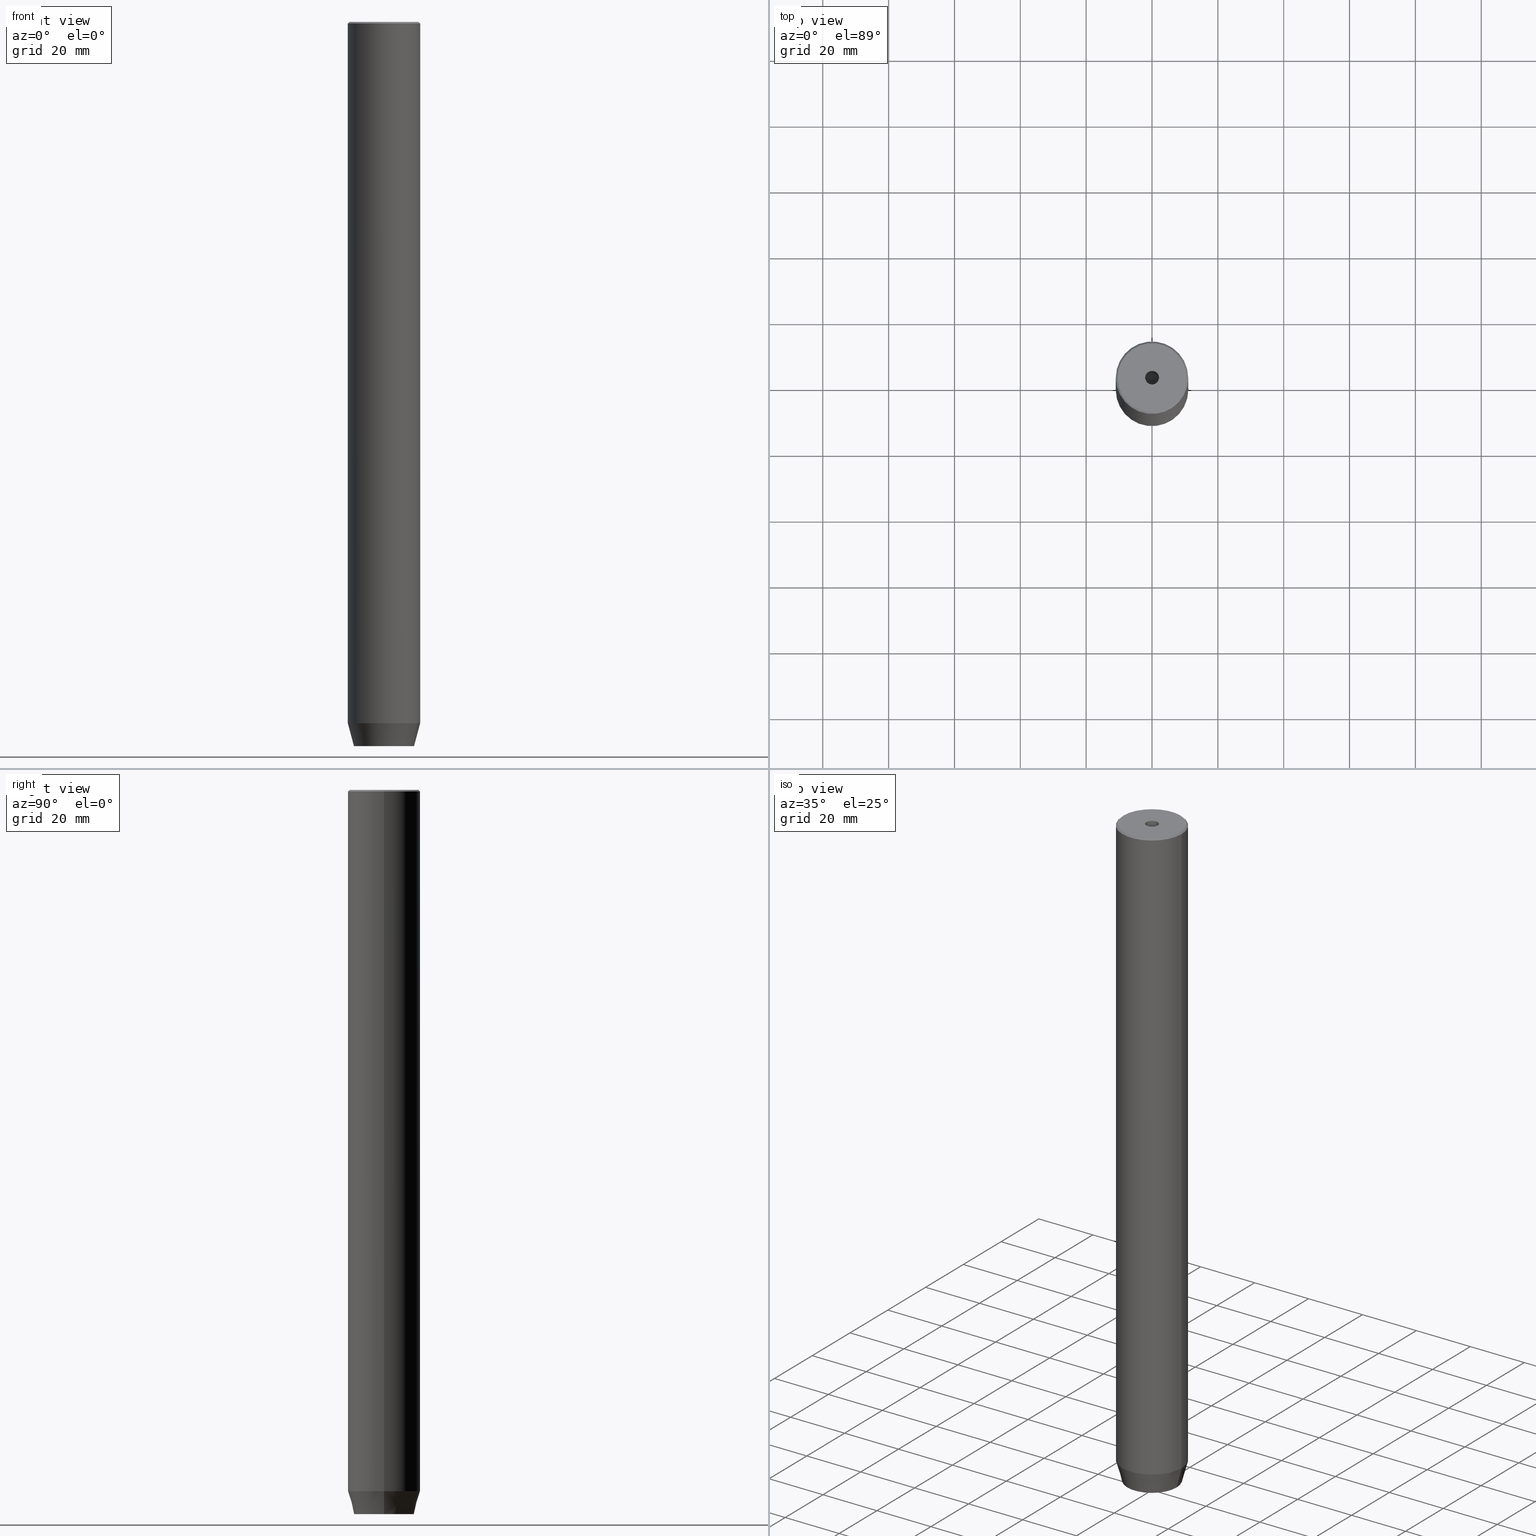
[diagram: canonical four-view strip — front | top / right | iso, engineering-drawing reading convention]
A machine part, canonical four-view strip (front | top / right | iso — engineering-drawing reading convention). The complete STEP part file that produces these views, byte-faithful:
ISO-10303-21;
HEADER;
FILE_DESCRIPTION (( 'STEP AP203' ),
    '1' );
FILE_NAME ('9ceb.STEP',
    '2024-01-02T17:17:46',
    ( '' ),
    ( '' ),
    'SwSTEP 2.0',
    'SolidWorks 2019',
    '' );
FILE_SCHEMA (( 'CONFIG_CONTROL_DESIGN' ));
ENDSEC;

DATA;
#1 = ORIENTED_EDGE ( 'NONE', *, *, #455, .T. ) ;
#2 = VECTOR ( 'NONE', #53, 1000.000000000000000 ) ;
#3 = AXIS2_PLACEMENT_3D ( 'NONE', #462, #364, #315 ) ;
#4 = ADVANCED_FACE ( 'NONE', ( #447 ), #166, .T. ) ;
#5 = CYLINDRICAL_SURFACE ( 'NONE', #268, 11.00000000000000000 ) ;
#6 = CARTESIAN_POINT ( 'NONE',  ( 4.000000000000000000, -2.309401076758502480, -217.2000000000000171 ) ) ;
#7 = CARTESIAN_POINT ( 'NONE',  ( 0.000000000000000000, 0.000000000000000000, -25.00000000000000000 ) ) ;
#8 = LINE ( 'NONE', #153, #2 ) ;
#9 = LINE ( 'NONE', #421, #437 ) ;
#10 = ADVANCED_FACE ( 'NONE', ( #580 ), #410, .F. ) ;
#11 = CARTESIAN_POINT ( 'NONE',  ( -2.099999999999996980, 2.571758278209438013E-16, 0.000000000000000000 ) ) ;
#12 = APPLICATION_PROTOCOL_DEFINITION ( 'international standard', 'config_control_design', 1994, #253 ) ;
#13 = CARTESIAN_POINT ( 'NONE',  ( 0.000000000000000000, 0.000000000000000000, -0.4999999999999726885 ) ) ;
#14 = DIRECTION ( 'NONE',  ( -0.8660254037844384856, 0.5000000000000002220, 0.000000000000000000 ) ) ;
#15 = PLANE ( 'NONE',  #552 ) ;
#16 = CARTESIAN_POINT ( 'NONE',  ( 0.000000000000000000, 0.000000000000000000, 0.000000000000000000 ) ) ;
#17 = VERTEX_POINT ( 'NONE', #465 ) ;
#18 = MECHANICAL_CONTEXT ( 'NONE', #253, 'mechanical' ) ;
#19 = EDGE_CURVE ( 'NONE', #83, #443, #28, .T. ) ;
#20 = CIRCLE ( 'NONE', #149, 11.00000000000000000 ) ;
#21 = CARTESIAN_POINT ( 'NONE',  ( 0.000000000000000000, 0.000000000000000000, 0.000000000000000000 ) ) ;
#22 = EDGE_LOOP ( 'NONE', ( #80, #306, #399, #486 ) ) ;
#23 = ORIENTED_EDGE ( 'NONE', *, *, #183, .F. ) ;
#24 = CALENDAR_DATE ( 2024, 2, 1 ) ;
#25 = EDGE_CURVE ( 'NONE', #473, #343, #232, .T. ) ;
#26 = EDGE_LOOP ( 'NONE', ( #220, #342, #169, #210 ) ) ;
#27 = APPROVAL_STATUS ( 'not_yet_approved' ) ;
#28 = CIRCLE ( 'NONE', #497, 11.00000000000000000 ) ;
#29 = VECTOR ( 'NONE', #37, 999.9999999999998863 ) ;
#30 = EDGE_LOOP ( 'NONE', ( #584, #23, #44, #484 ) ) ;
#31 = APPROVAL_PERSON_ORGANIZATION ( #75, #341, #162 ) ;
#32 = VECTOR ( 'NONE', #279, 1000.000000000000000 ) ;
#33 = PERSON_AND_ORGANIZATION_ROLE ( 'creator' ) ;
#34 = CARTESIAN_POINT ( 'NONE',  ( 0.000000000000000000, 4.618802153517006737, -217.2000000000000171 ) ) ;
#35 = DIRECTION ( 'NONE',  ( 0.000000000000000000, 0.000000000000000000, -1.000000000000000000 ) ) ;
#36 = CALENDAR_DATE ( 2024, 2, 1 ) ;
#37 = DIRECTION ( 'NONE',  ( 0.8660254037844387076, 0.5000000000000001110, 0.000000000000000000 ) ) ;
#38 = ORIENTED_EDGE ( 'NONE', *, *, #25, .F. ) ;
#39 = DIRECTION ( 'NONE',  ( -0.8660254037844385966, 0.5000000000000001110, 0.000000000000000000 ) ) ;
#40 = ORIENTED_EDGE ( 'NONE', *, *, #200, .T. ) ;
#41 = VECTOR ( 'NONE', #330, 1000.000000000000000 ) ;
#42 = CIRCLE ( 'NONE', #344, 2.099999999999995648 ) ;
#43 = DIRECTION ( 'NONE',  ( -0.000000000000000000, -0.000000000000000000, 1.000000000000000000 ) ) ;
#44 = ORIENTED_EDGE ( 'NONE', *, *, #200, .F. ) ;
#45 = CARTESIAN_POINT ( 'NONE',  ( 11.00000000000000000, 0.000000000000000000, -0.4999999999999726885 ) ) ;
#46 = ORIENTED_EDGE ( 'NONE', *, *, #345, .F. ) ;
#47 = EDGE_CURVE ( 'NONE', #352, #177, #512, .T. ) ;
#48 = DIRECTION ( 'NONE',  ( -0.8660254037844384856, -0.5000000000000002220, 0.000000000000000000 ) ) ;
#49 = LINE ( 'NONE', #6, #427 ) ;
#50 = DESIGN_CONTEXT ( 'detailed design', #518, 'design' ) ;
#51 = CARTESIAN_POINT ( 'NONE',  ( -2.000000000000000000, 3.464101615137754830, -220.0000000000000000 ) ) ;
#52 = DIRECTION ( 'NONE',  ( -0.7071067811865401342, 0.000000000000000000, -0.7071067811865549002 ) ) ;
#53 = DIRECTION ( 'NONE',  ( -0.000000000000000000, -0.000000000000000000, -1.000000000000000000 ) ) ;
#54 = DIRECTION ( 'NONE',  ( 1.000000000000000000, 0.000000000000000000, 0.000000000000000000 ) ) ;
#55 = PRODUCT ( '9ceb', '9ceb', '', ( #18 ) ) ;
#56 = LINE ( 'NONE', #239, #398 ) ;
#57 = AXIS2_PLACEMENT_3D ( 'NONE', #565, #400, #160 ) ;
#58 = PLANE ( 'NONE',  #284 ) ;
#59 = CARTESIAN_POINT ( 'NONE',  ( 0.000000000000000000, 0.000000000000000000, -212.9999999999999716 ) ) ;
#60 = CARTESIAN_POINT ( 'NONE',  ( 9.124355652982126585, 0.000000000000000000, -220.0000000000000000 ) ) ;
#61 = ORIENTED_EDGE ( 'NONE', *, *, #90, .F. ) ;
#62 = EDGE_CURVE ( 'NONE', #456, #479, #8, .T. ) ;
#63 = DIRECTION ( 'NONE',  ( -0.5000000000000000000, 0.8660254037844387076, 0.000000000000000000 ) ) ;
#64 = LINE ( 'NONE', #355, #29 ) ;
#65 = ORIENTED_EDGE ( 'NONE', *, *, #126, .F. ) ;
#66 = CIRCLE ( 'NONE', #176, 9.124355652982126585 ) ;
#67 = DIRECTION ( 'NONE',  ( -0.000000000000000000, -0.000000000000000000, 1.000000000000000000 ) ) ;
#68 = EDGE_LOOP ( 'NONE', ( #562, #295, #436, #163 ) ) ;
#69 = DATE_AND_TIME ( #572, #157 ) ;
#70 = EDGE_CURVE ( 'NONE', #230, #343, #382, .T. ) ;
#71 = ORIENTED_EDGE ( 'NONE', *, *, #319, .T. ) ;
#72 = CALENDAR_DATE ( 2024, 2, 1 ) ;
#73 = CC_DESIGN_PERSON_AND_ORGANIZATION_ASSIGNMENT ( #201, #383, ( #55 ) ) ;
#74 = ORIENTED_EDGE ( 'NONE', *, *, #327, .F. ) ;
#75 = PERSON_AND_ORGANIZATION ( #104, #517 ) ;
#76 = AXIS2_PLACEMENT_3D ( 'NONE', #313, #321, #359 ) ;
#77 = ORIENTED_EDGE ( 'NONE', *, *, #404, .F. ) ;
#78 = PERSON_AND_ORGANIZATION ( #104, #517 ) ;
#79 = CARTESIAN_POINT ( 'NONE',  ( -9.124355652982126585, 1.232261386766375113E-15, -220.0000000000000000 ) ) ;
#80 = ORIENTED_EDGE ( 'NONE', *, *, #554, .T. ) ;
#81 = ADVANCED_FACE ( 'NONE', ( #103 ), #556, .F. ) ;
#82 = DIRECTION ( 'NONE',  ( -0.8660254037844384856, 0.5000000000000002220, 0.000000000000000000 ) ) ;
#83 = VERTEX_POINT ( 'NONE', #283 ) ;
#84 = CC_DESIGN_DATE_AND_TIME_ASSIGNMENT ( #69, #530, ( #370 ) ) ;
#85 = DIRECTION ( 'NONE',  ( 1.000000000000000000, 0.000000000000000000, 0.000000000000000000 ) ) ;
#86 = VECTOR ( 'NONE', #194, 1000.000000000000000 ) ;
#87 = ORIENTED_EDGE ( 'NONE', *, *, #281, .T. ) ;
#88 = VECTOR ( 'NONE', #461, 1000.000000000000000 ) ;
#89 = FACE_OUTER_BOUND ( 'NONE', #569, .T. ) ;
#90 = EDGE_CURVE ( 'NONE', #260, #347, #42, .T. ) ;
#91 = ORIENTED_EDGE ( 'NONE', *, *, #281, .F. ) ;
#92 = FACE_OUTER_BOUND ( 'NONE', #26, .T. ) ;
#93 = CARTESIAN_POINT ( 'NONE',  ( 0.000000000000000000, 0.000000000000000000, 0.000000000000000000 ) ) ;
#94 = LINE ( 'NONE', #501, #356 ) ;
#95 = DIRECTION ( 'NONE',  ( -0.000000000000000000, -0.000000000000000000, 1.000000000000000000 ) ) ;
#96 = VECTOR ( 'NONE', #286, 1000.000000000000000 ) ;
#97 = PLANE ( 'NONE',  #489 ) ;
#98 = CARTESIAN_POINT ( 'NONE',  ( -4.000000000000000000, 0.000000000000000000, -217.2000000000000171 ) ) ;
#99 = ADVANCED_FACE ( 'NONE', ( #470 ), #58, .F. ) ;
#100 = CARTESIAN_POINT ( 'NONE',  ( 0.000000000000000000, 0.000000000000000000, 0.000000000000000000 ) ) ;
#101 = CARTESIAN_POINT ( 'NONE',  ( -2.000000000000000888, -3.464101615137754386, -217.2000000000000171 ) ) ;
#102 = PLANE ( 'NONE',  #165 ) ;
#103 = FACE_OUTER_BOUND ( 'NONE', #238, .T. ) ;
#104 = PERSON ( 'NEUR�EN�', 'NEUR�EN�', 'NEUR�EN�', ('NEUR�EN�'), ('NEUR�EN�'), ('NEUR�EN�') ) ;
#105 = VECTOR ( 'NONE', #199, 1000.000000000000000 ) ;
#106 = APPLICATION_PROTOCOL_DEFINITION ( 'international standard', 'config_control_design', 1994, #518 ) ;
#107 = CC_DESIGN_SECURITY_CLASSIFICATION ( #208, ( #140 ) ) ;
#108 = EDGE_CURVE ( 'NONE', #309, #352, #510, .T. ) ;
#109 = CARTESIAN_POINT ( 'NONE',  ( 0.000000000000000000, 9.124355652982126585, -220.0000000000000000 ) ) ;
#110 = ORIENTED_EDGE ( 'NONE', *, *, #302, .T. ) ;
#111 = LINE ( 'NONE', #204, #96 ) ;
#112 = CARTESIAN_POINT ( 'NONE',  ( 4.336808689942017736E-16, -4.618802153517006737, -217.2000000000000171 ) ) ;
#113 = VERTEX_POINT ( 'NONE', #502 ) ;
#114 = DIRECTION ( 'NONE',  ( 1.000000000000000000, 0.000000000000000000, 0.000000000000000000 ) ) ;
#115 = ORIENTED_EDGE ( 'NONE', *, *, #485, .F. ) ;
#116 = EDGE_CURVE ( 'NONE', #496, #388, #454, .T. ) ;
#117 = VECTOR ( 'NONE', #291, 1000.000000000000000 ) ;
#118 = LOCAL_TIME ( 18, 17, 46.00000000000000000, #483 ) ;
#119 = ORIENTED_EDGE ( 'NONE', *, *, #116, .T. ) ;
#120 = PERSON_AND_ORGANIZATION ( #104, #517 ) ;
#121 = ORIENTED_EDGE ( 'NONE', *, *, #191, .T. ) ;
#122 = ORIENTED_EDGE ( 'NONE', *, *, #336, .F. ) ;
#123 = DATE_AND_TIME ( #36, #196 ) ;
#124 = CARTESIAN_POINT ( 'NONE',  ( 2.000000000000000444, 3.464101615137754386, -220.0000000000000000 ) ) ;
#125 = CIRCLE ( 'NONE', #195, 10.50000000000003730 ) ;
#126 = EDGE_CURVE ( 'NONE', #83, #473, #56, .T. ) ;
#127 = EDGE_LOOP ( 'NONE', ( #534, #161, #270 ) ) ;
#128 = DIRECTION ( 'NONE',  ( -1.000000000000000000, 0.000000000000000000, 0.000000000000000000 ) ) ;
#129 = CONICAL_SURFACE ( 'NONE', #269, 2.099999999999995648, 1.029744258676651647 ) ;
#130 = MANIFOLD_SOLID_BREP ( 'Vrt�k z�vitn�ku pro M5 z�vit1', #396 ) ;
#131 = CYLINDRICAL_SURFACE ( 'NONE', #581, 11.00000000000000000 ) ;
#132 = ORIENTED_EDGE ( 'NONE', *, *, #241, .F. ) ;
#133 = CARTESIAN_POINT ( 'NONE',  ( -11.00000000000000000, 1.347111479062088405E-15, -212.9999999999999716 ) ) ;
#134 = ORIENTED_EDGE ( 'NONE', *, *, #70, .T. ) ;
#135 = EDGE_CURVE ( 'NONE', #260, #388, #146, .T. ) ;
#136 = CARTESIAN_POINT ( 'NONE',  ( -4.000000000000000000, -2.309401076758503368, -217.2000000000000171 ) ) ;
#137 = AXIS2_PLACEMENT_3D ( 'NONE', #475, #576, #114 ) ;
#138 = EDGE_LOOP ( 'NONE', ( #521, #500 ) ) ;
#139 = VECTOR ( 'NONE', #155, 1000.000000000000000 ) ;
#140 = PRODUCT_DEFINITION_FORMATION_WITH_SPECIFIED_SOURCE ( 'LIBOVOLN�', '', #55, .NOT_KNOWN. ) ;
#141 = AXIS2_PLACEMENT_3D ( 'NONE', #109, #558, #259 ) ;
#142 = LINE ( 'NONE', #457, #367 ) ;
#143 = CARTESIAN_POINT ( 'NONE',  ( -4.000000000000000000, -2.309401076758503368, -220.0000000000000000 ) ) ;
#144 = UNCERTAINTY_MEASURE_WITH_UNIT (LENGTH_MEASURE( 1.000000000000000082E-05 ), #555, 'distance_accuracy_value', 'NONE');
#145 = FACE_OUTER_BOUND ( 'NONE', #413, .T. ) ;
#146 = LINE ( 'NONE', #11, #570 ) ;
#147 = FACE_OUTER_BOUND ( 'NONE', #127, .T. ) ;
#148 = CARTESIAN_POINT ( 'NONE',  ( 0.000000000000000000, 0.000000000000000000, -25.00000000000000000 ) ) ;
#149 = AXIS2_PLACEMENT_3D ( 'NONE', #294, #490, #262 ) ;
#150 = CARTESIAN_POINT ( 'NONE',  ( 11.00000000000000000, 0.000000000000000000, -212.9999999999999716 ) ) ;
#151 = DIRECTION ( 'NONE',  ( -0.000000000000000000, -0.000000000000000000, 1.000000000000000000 ) ) ;
#152 = DIRECTION ( 'NONE',  ( 0.8571673007021108903, 0.000000000000000000, 0.5150380749100565980 ) ) ;
#153 = CARTESIAN_POINT ( 'NONE',  ( 4.000000000000000000, 2.309401076758503368, -217.2000000000000171 ) ) ;
#154 = EDGE_CURVE ( 'NONE', #493, #260, #419, .T. ) ;
#155 = DIRECTION ( 'NONE',  ( 0.8660254037844385966, -0.5000000000000001110, 0.000000000000000000 ) ) ;
#156 = CARTESIAN_POINT ( 'NONE',  ( -6.432287649943602629E-15, 0.000000000000000000, -26.26180729995787999 ) ) ;
#157 = LOCAL_TIME ( 18, 17, 46.00000000000000000, #353 ) ;
#158 = DIRECTION ( 'NONE',  ( 0.000000000000000000, 0.000000000000000000, 1.000000000000000000 ) ) ;
#159 = ORIENTED_EDGE ( 'NONE', *, *, #379, .F. ) ;
#160 = DIRECTION ( 'NONE',  ( 1.000000000000000000, 0.000000000000000000, 0.000000000000000000 ) ) ;
#161 = ORIENTED_EDGE ( 'NONE', *, *, #505, .T. ) ;
#162 = APPROVAL_ROLE ( '' ) ;
#163 = ORIENTED_EDGE ( 'NONE', *, *, #25, .T. ) ;
#164 = PERSON_AND_ORGANIZATION ( #104, #517 ) ;
#165 = AXIS2_PLACEMENT_3D ( 'NONE', #381, #63, #207 ) ;
#166 = CONICAL_SURFACE ( 'NONE', #307, 10.50000000000003730, 0.7853981633974378429 ) ;
#167 = EDGE_LOOP ( 'NONE', ( #292, #311, #441 ) ) ;
#168 = PERSON_AND_ORGANIZATION_ROLE ( 'design_supplier' ) ;
#169 = ORIENTED_EDGE ( 'NONE', *, *, #494, .F. ) ;
#170 = LINE ( 'NONE', #340, #376 ) ;
#171 = EDGE_CURVE ( 'NONE', #254, #473, #373, .T. ) ;
#172 = EDGE_LOOP ( 'NONE', ( #256, #211, #71, #65 ) ) ;
#173 = PERSON_AND_ORGANIZATION_ROLE ( 'creator' ) ;
#174 = PLANE ( 'NONE',  #141 ) ;
#175 = VECTOR ( 'NONE', #323, 1000.000000000000000 ) ;
#176 = AXIS2_PLACEMENT_3D ( 'NONE', #197, #563, #471 ) ;
#177 = VERTEX_POINT ( 'NONE', #143 ) ;
#178 = DIRECTION ( 'NONE',  ( -0.000000000000000000, -0.000000000000000000, 1.000000000000000000 ) ) ;
#179 = ORIENTED_EDGE ( 'NONE', *, *, #554, .F. ) ;
#180 = EDGE_CURVE ( 'NONE', #352, #17, #320, .T. ) ;
#181 = CARTESIAN_POINT ( 'NONE',  ( 2.000000000000000444, 3.464101615137754386, -217.2000000000000171 ) ) ;
#182 = ORIENTED_EDGE ( 'NONE', *, *, #108, .F. ) ;
#183 = EDGE_CURVE ( 'NONE', #537, #476, #49, .T. ) ;
#184 = DIRECTION ( 'NONE',  ( 0.8660254037844387076, 0.5000000000000001110, 0.000000000000000000 ) ) ;
#185 = ORIENTED_EDGE ( 'NONE', *, *, #379, .T. ) ;
#186 = CIRCLE ( 'NONE', #57, 11.00000000000000000 ) ;
#187 = VECTOR ( 'NONE', #551, 1000.000000000000114 ) ;
#188 = CARTESIAN_POINT ( 'NONE',  ( -2.099999999999998757, 2.571758278209440478E-16, -1.990051048614449116E-16 ) ) ;
#189 = DIRECTION ( 'NONE',  ( 1.000000000000000000, 0.000000000000000000, 0.000000000000000000 ) ) ;
#190 = DIRECTION ( 'NONE',  ( -0.000000000000000000, -0.000000000000000000, 1.000000000000000000 ) ) ;
#191 = EDGE_CURVE ( 'NONE', #309, #113, #550, .T. ) ;
#192 = CARTESIAN_POINT ( 'NONE',  ( -2.099999999999995648, 2.571758278209436040E-16, -25.00000000000000000 ) ) ;
#193 = CARTESIAN_POINT ( 'NONE',  ( 2.099999999999995648, 0.000000000000000000, -25.00000000000000000 ) ) ;
#194 = DIRECTION ( 'NONE',  ( 0.000000000000000000, -1.000000000000000000, 0.000000000000000000 ) ) ;
#195 = AXIS2_PLACEMENT_3D ( 'NONE', #16, #432, #446 ) ;
#196 = LOCAL_TIME ( 18, 17, 46.00000000000000000, #213 ) ;
#197 = CARTESIAN_POINT ( 'NONE',  ( 0.000000000000000000, 0.000000000000000000, -220.0000000000000000 ) ) ;
#198 = AXIS2_PLACEMENT_3D ( 'NONE', #368, #95, #548 ) ;
#199 = DIRECTION ( 'NONE',  ( -0.000000000000000000, -0.000000000000000000, -1.000000000000000000 ) ) ;
#200 = EDGE_CURVE ( 'NONE', #456, #537, #467, .T. ) ;
#201 = PERSON_AND_ORGANIZATION ( #104, #517 ) ;
#202 = DIRECTION ( 'NONE',  ( -0.000000000000000000, -0.000000000000000000, 1.000000000000000000 ) ) ;
#203 = CC_DESIGN_PERSON_AND_ORGANIZATION_ASSIGNMENT ( #444, #33, ( #370 ) ) ;
#204 = CARTESIAN_POINT ( 'NONE',  ( 2.000000000000000444, 3.464101615137754386, -217.2000000000000171 ) ) ;
#205 = PLANE ( 'NONE',  #354 ) ;
#206 = ORIENTED_EDGE ( 'NONE', *, *, #485, .T. ) ;
#207 = DIRECTION ( 'NONE',  ( -0.8660254037844385966, -0.4999999999999999445, 0.000000000000000000 ) ) ;
#208 = SECURITY_CLASSIFICATION ( '', '', #532 ) ;
#209 = CARTESIAN_POINT ( 'NONE',  ( 2.168404344971008868E-16, 4.618802153517006737, -220.0000000000000000 ) ) ;
#210 = ORIENTED_EDGE ( 'NONE', *, *, #217, .T. ) ;
#211 = ORIENTED_EDGE ( 'NONE', *, *, #547, .T. ) ;
#212 = ORIENTED_EDGE ( 'NONE', *, *, #224, .F. ) ;
#213 = COORDINATED_UNIVERSAL_TIME_OFFSET ( 1, 0, .AHEAD. ) ;
#214 = CONICAL_SURFACE ( 'NONE', #365, 11.00000000000000000, 0.2617993877991499629 ) ;
#215 = AXIS2_PLACEMENT_3D ( 'NONE', #100, #280, #54 ) ;
#216 = ORIENTED_EDGE ( 'NONE', *, *, #224, .T. ) ;
#217 = EDGE_CURVE ( 'NONE', #358, #316, #310, .T. ) ;
#218 = APPROVAL_DATE_TIME ( #261, #296 ) ;
#219 = DIRECTION ( 'NONE',  ( -1.000000000000000000, 0.000000000000000000, 0.000000000000000000 ) ) ;
#220 = ORIENTED_EDGE ( 'NONE', *, *, #345, .T. ) ;
#221 = CARTESIAN_POINT ( 'NONE',  ( -10.50000000000003730, 0.000000000000000000, 0.000000000000000000 ) ) ;
#222 = EDGE_LOOP ( 'NONE', ( #303, #420, #573, #531 ) ) ;
#223 = CARTESIAN_POINT ( 'NONE',  ( 0.000000000000000000, 0.000000000000000000, -220.0000000000000000 ) ) ;
#224 = EDGE_CURVE ( 'NONE', #230, #254, #425, .T. ) ;
#225 = CC_DESIGN_APPROVAL ( #341, ( #370 ) ) ;
#226 = VERTEX_POINT ( 'NONE', #79 ) ;
#227 = LINE ( 'NONE', #498, #175 ) ;
#228 = CARTESIAN_POINT ( 'NONE',  ( 0.000000000000000000, 0.000000000000000000, 0.000000000000000000 ) ) ;
#229 = CARTESIAN_POINT ( 'NONE',  ( 0.000000000000000000, 0.000000000000000000, 0.000000000000000000 ) ) ;
#230 = VERTEX_POINT ( 'NONE', #221 ) ;
#231 = FACE_OUTER_BOUND ( 'NONE', #68, .T. ) ;
#232 = CIRCLE ( 'NONE', #299, 11.00000000000000000 ) ;
#233 = DIRECTION ( 'NONE',  ( 1.000000000000000000, 0.000000000000000000, 0.000000000000000000 ) ) ;
#234 = ADVANCED_FACE ( 'NONE', ( #351 ), #214, .T. ) ;
#235 = CARTESIAN_POINT ( 'NONE',  ( 4.000000000000000000, 0.000000000000000000, -220.0000000000000000 ) ) ;
#236 = DIRECTION ( 'NONE',  ( -0.000000000000000000, -0.000000000000000000, 1.000000000000000000 ) ) ;
#237 = LINE ( 'NONE', #193, #285 ) ;
#238 = EDGE_LOOP ( 'NONE', ( #349, #132, #247, #119 ) ) ;
#239 = CARTESIAN_POINT ( 'NONE',  ( 11.00000000000000000, 0.000000000000000000, 0.000000000000000000 ) ) ;
#240 = FACE_OUTER_BOUND ( 'NONE', #265, .T. ) ;
#241 = EDGE_CURVE ( 'NONE', #347, #260, #258, .T. ) ;
#242 = DIRECTION ( 'NONE',  ( -0.8571673007021108903, 1.049727191138616847E-16, 0.5150380749100565980 ) ) ;
#243 = DIRECTION ( 'NONE',  ( 1.000000000000000000, 0.000000000000000000, 0.000000000000000000 ) ) ;
#244 = CARTESIAN_POINT ( 'NONE',  ( -10.50000000000003730, 0.000000000000000000, 0.000000000000000000 ) ) ;
#245 = LINE ( 'NONE', #150, #187 ) ;
#246 = FACE_OUTER_BOUND ( 'NONE', #451, .T. ) ;
#247 = ORIENTED_EDGE ( 'NONE', *, *, #336, .T. ) ;
#248 = PRODUCT_DEFINITION_SHAPE ( 'NONE', 'NONE',  #370 ) ;
#249 = PLANE ( 'NONE',  #478 ) ;
#250 = ORIENTED_EDGE ( 'NONE', *, *, #319, .F. ) ;
#251 = ORIENTED_EDGE ( 'NONE', *, *, #511, .F. ) ;
#252 = DATE_AND_TIME ( #438, #378 ) ;
#253 = APPLICATION_CONTEXT ( 'configuration controlled 3d designs of mechanical parts and assemblies' ) ;
#254 = VERTEX_POINT ( 'NONE', #579 ) ;
#255 = ADVANCED_FACE ( 'NONE', ( #520, #560 ), #174, .T. ) ;
#256 = ORIENTED_EDGE ( 'NONE', *, *, #19, .T. ) ;
#257 = PERSON_AND_ORGANIZATION ( #104, #517 ) ;
#258 = CIRCLE ( 'NONE', #317, 2.099999999999995648 ) ;
#259 = DIRECTION ( 'NONE',  ( -1.000000000000000000, 0.000000000000000000, -0.000000000000000000 ) ) ;
#260 = VERTEX_POINT ( 'NONE', #387 ) ;
#261 = DATE_AND_TIME ( #72, #118 ) ;
#262 = DIRECTION ( 'NONE',  ( 1.000000000000000000, 0.000000000000000000, 0.000000000000000000 ) ) ;
#263 = ORIENTED_EDGE ( 'NONE', *, *, #108, .T. ) ;
#264 = DIRECTION ( 'NONE',  ( 1.000000000000000000, 0.000000000000000000, -0.000000000000000000 ) ) ;
#265 = EDGE_LOOP ( 'NONE', ( #251, #206, #491, #540 ) ) ;
#266 = CARTESIAN_POINT ( 'NONE',  ( 2.000000000000000888, -3.464101615137754386, -220.0000000000000000 ) ) ;
#267 = EDGE_CURVE ( 'NONE', #443, #83, #20, .T. ) ;
#268 = AXIS2_PLACEMENT_3D ( 'NONE', #587, #415, #369 ) ;
#269 = AXIS2_PLACEMENT_3D ( 'NONE', #452, #43, #318 ) ;
#270 = ORIENTED_EDGE ( 'NONE', *, *, #241, .T. ) ;
#271 = CARTESIAN_POINT ( 'NONE',  ( 2.099999999999995648, 0.000000000000000000, -25.00000000000000000 ) ) ;
#272 = VERTEX_POINT ( 'NONE', #60 ) ;
#273 = LINE ( 'NONE', #51, #525 ) ;
#274 = CARTESIAN_POINT ( 'NONE',  ( 10.50000000000003730, 1.285879139104725367E-15, 0.000000000000000000 ) ) ;
#275 = ADVANCED_FACE ( 'NONE', ( #389 ), #249, .F. ) ;
#276 = DIRECTION ( 'NONE',  ( -0.8660254037844384856, -0.5000000000000002220, 0.000000000000000000 ) ) ;
#277 = DIRECTION ( 'NONE',  ( -0.000000000000000000, -0.000000000000000000, -1.000000000000000000 ) ) ;
#278 = DIRECTION ( 'NONE',  ( 0.5000000000000001110, 0.8660254037844385966, -0.000000000000000000 ) ) ;
#279 = DIRECTION ( 'NONE',  ( -0.000000000000000000, -0.000000000000000000, -1.000000000000000000 ) ) ;
#280 = DIRECTION ( 'NONE',  ( 0.000000000000000000, 0.000000000000000000, 1.000000000000000000 ) ) ;
#281 = EDGE_CURVE ( 'NONE', #254, #230, #125, .T. ) ;
#282 = DIRECTION ( 'NONE',  ( 0.8660254037844384856, 0.5000000000000002220, 0.000000000000000000 ) ) ;
#283 = CARTESIAN_POINT ( 'NONE',  ( 11.00000000000000000, 0.000000000000000000, -212.9999999999999716 ) ) ;
#284 = AXIS2_PLACEMENT_3D ( 'NONE', #377, #417, #329 ) ;
#285 = VECTOR ( 'NONE', #152, 1000.000000000000114 ) ;
#286 = DIRECTION ( 'NONE',  ( 0.8660254037844385966, -0.5000000000000001110, 0.000000000000000000 ) ) ;
#287 = VECTOR ( 'NONE', #242, 1000.000000000000114 ) ;
#288 = CARTESIAN_POINT ( 'NONE',  ( 0.000000000000000000, 0.000000000000000000, -212.9999999999999716 ) ) ;
#289 = VERTEX_POINT ( 'NONE', #448 ) ;
#290 = DIRECTION ( 'NONE',  ( 0.000000000000000000, -0.000000000000000000, 1.000000000000000000 ) ) ;
#291 = DIRECTION ( 'NONE',  ( -0.000000000000000000, -0.000000000000000000, -1.000000000000000000 ) ) ;
#292 = ORIENTED_EDGE ( 'NONE', *, *, #505, .F. ) ;
#293 = ADVANCED_FACE ( 'NONE', ( #246 ), #205, .F. ) ;
#294 = CARTESIAN_POINT ( 'NONE',  ( 0.000000000000000000, 0.000000000000000000, -212.9999999999999716 ) ) ;
#295 = ORIENTED_EDGE ( 'NONE', *, *, #267, .T. ) ;
#296 = APPROVAL ( #574, 'NEUR�EN�' ) ;
#297 = COORDINATED_UNIVERSAL_TIME_OFFSET ( 1, 0, .AHEAD. ) ;
#298 = CONICAL_SURFACE ( 'NONE', #535, 11.00000000000000000, 0.2617993877991499629 ) ;
#299 = AXIS2_PLACEMENT_3D ( 'NONE', #13, #322, #189 ) ;
#300 = ORIENTED_EDGE ( 'NONE', *, *, #494, .T. ) ;
#301 = PERSON_AND_ORGANIZATION_ROLE ( 'classification_officer' ) ;
#302 = EDGE_CURVE ( 'NONE', #17, #358, #64, .T. ) ;
#303 = ORIENTED_EDGE ( 'NONE', *, *, #430, .T. ) ;
#304 = ORIENTED_EDGE ( 'NONE', *, *, #180, .T. ) ;
#305 = APPROVAL_ROLE ( '' ) ;
#306 = ORIENTED_EDGE ( 'NONE', *, *, #511, .T. ) ;
#307 = AXIS2_PLACEMENT_3D ( 'NONE', #228, #35, #128 ) ;
#308 = DIRECTION ( 'NONE',  ( 1.000000000000000000, 0.000000000000000000, 0.000000000000000000 ) ) ;
#309 = VERTEX_POINT ( 'NONE', #112 ) ;
#310 = LINE ( 'NONE', #34, #117 ) ;
#311 = ORIENTED_EDGE ( 'NONE', *, *, #154, .T. ) ;
#312 = ADVANCED_FACE ( 'NONE', ( #333 ), #131, .T. ) ;
#313 = CARTESIAN_POINT ( 'NONE',  ( 0.000000000000000000, 0.000000000000000000, -217.2000000000000171 ) ) ;
#314 = ORIENTED_EDGE ( 'NONE', *, *, #70, .F. ) ;
#315 = DIRECTION ( 'NONE',  ( -1.000000000000000000, 0.000000000000000000, 0.000000000000000000 ) ) ;
#316 = VERTEX_POINT ( 'NONE', #209 ) ;
#317 = AXIS2_PLACEMENT_3D ( 'NONE', #403, #472, #308 ) ;
#318 = DIRECTION ( 'NONE',  ( 1.000000000000000000, 0.000000000000000000, 0.000000000000000000 ) ) ;
#319 = EDGE_CURVE ( 'NONE', #343, #473, #186, .T. ) ;
#320 = LINE ( 'NONE', #98, #88 ) ;
#321 = DIRECTION ( 'NONE',  ( 0.000000000000000000, 0.000000000000000000, -1.000000000000000000 ) ) ;
#322 = DIRECTION ( 'NONE',  ( 0.000000000000000000, 0.000000000000000000, -1.000000000000000000 ) ) ;
#323 = DIRECTION ( 'NONE',  ( 0.000000000000000000, 1.000000000000000000, 0.000000000000000000 ) ) ;
#324 = VECTOR ( 'NONE', #202, 1000.000000000000000 ) ;
#325 = CARTESIAN_POINT ( 'NONE',  ( 4.336808689942017736E-16, -4.618802153517006737, -217.2000000000000171 ) ) ;
#326 = CC_DESIGN_APPROVAL ( #514, ( #140 ) ) ;
#327 = EDGE_CURVE ( 'NONE', #113, #177, #170, .T. ) ;
#328 = CARTESIAN_POINT ( 'NONE',  ( -11.00000000000000000, 1.347111479062088405E-15, 0.000000000000000000 ) ) ;
#329 = DIRECTION ( 'NONE',  ( 0.8660254037844384856, -0.5000000000000002220, 0.000000000000000000 ) ) ;
#330 = DIRECTION ( 'NONE',  ( -0.000000000000000000, -0.000000000000000000, 1.000000000000000000 ) ) ;
#331 = CARTESIAN_POINT ( 'NONE',  ( 0.000000000000000000, 0.000000000000000000, -212.9999999999999716 ) ) ;
#332 = DIRECTION ( 'NONE',  ( 1.000000000000000000, 0.000000000000000000, 0.000000000000000000 ) ) ;
#333 = FACE_OUTER_BOUND ( 'NONE', #172, .T. ) ;
#334 = VECTOR ( 'NONE', #582, 1000.000000000000000 ) ;
#335 = CARTESIAN_POINT ( 'NONE',  ( 2.099999999999998757, 0.000000000000000000, -1.990051048614449116E-16 ) ) ;
#336 = EDGE_CURVE ( 'NONE', #347, #496, #450, .T. ) ;
#337 = CARTESIAN_POINT ( 'NONE',  ( 2.099999999999996980, 0.000000000000000000, 0.000000000000000000 ) ) ;
#338 = ORIENTED_EDGE ( 'NONE', *, *, #217, .F. ) ;
#339 = FACE_OUTER_BOUND ( 'NONE', #566, .T. ) ;
#340 = CARTESIAN_POINT ( 'NONE',  ( -2.000000000000000888, -3.464101615137754386, -220.0000000000000000 ) ) ;
#341 = APPROVAL ( #27, 'NEUR�EN�' ) ;
#342 = ORIENTED_EDGE ( 'NONE', *, *, #62, .F. ) ;
#343 = VERTEX_POINT ( 'NONE', #533 ) ;
#344 = AXIS2_PLACEMENT_3D ( 'NONE', #148, #151, #429 ) ;
#345 = EDGE_CURVE ( 'NONE', #316, #479, #523, .T. ) ;
#346 = VECTOR ( 'NONE', #545, 1000.000000000000000 ) ;
#347 = VERTEX_POINT ( 'NONE', #271 ) ;
#348 = PERSON_AND_ORGANIZATION ( #104, #517 ) ;
#349 = ORIENTED_EDGE ( 'NONE', *, *, #135, .F. ) ;
#350 = DATE_TIME_ROLE ( 'classification_date' ) ;
#351 = FACE_OUTER_BOUND ( 'NONE', #22, .T. ) ;
#352 = VERTEX_POINT ( 'NONE', #136 ) ;
#353 = COORDINATED_UNIVERSAL_TIME_OFFSET ( 1, 0, .AHEAD. ) ;
#354 = AXIS2_PLACEMENT_3D ( 'NONE', #536, #219, #158 ) ;
#355 = CARTESIAN_POINT ( 'NONE',  ( -2.000000000000000000, 3.464101615137754830, -217.2000000000000171 ) ) ;
#356 = VECTOR ( 'NONE', #276, 1000.000000000000114 ) ;
#357 = ADVANCED_FACE ( 'NONE', ( #89 ), #515, .T. ) ;
#358 = VERTEX_POINT ( 'NONE', #541 ) ;
#359 = DIRECTION ( 'NONE',  ( -1.000000000000000000, 0.000000000000000000, -0.000000000000000000 ) ) ;
#360 = ORIENTED_EDGE ( 'NONE', *, *, #391, .F. ) ;
#361 = DIRECTION ( 'NONE',  ( -0.000000000000000000, -0.000000000000000000, 1.000000000000000000 ) ) ;
#362 = CARTESIAN_POINT ( 'NONE',  ( 2.000000000000000888, -3.464101615137754386, -217.2000000000000171 ) ) ;
#363 = ADVANCED_FACE ( 'NONE', ( #231 ), #5, .T. ) ;
#364 = DIRECTION ( 'NONE',  ( 0.000000000000000000, 0.000000000000000000, -1.000000000000000000 ) ) ;
#365 = AXIS2_PLACEMENT_3D ( 'NONE', #288, #67, #516 ) ;
#366 = CIRCLE ( 'NONE', #416, 2.099999999999998757 ) ;
#367 = VECTOR ( 'NONE', #503, 1000.000000000000000 ) ;
#368 = CARTESIAN_POINT ( 'NONE',  ( 0.000000000000000000, 0.000000000000000000, -1.990051048614449116E-16 ) ) ;
#369 = DIRECTION ( 'NONE',  ( 1.000000000000000000, 0.000000000000000000, 0.000000000000000000 ) ) ;
#370 = PRODUCT_DEFINITION ( 'NEZN�M�', '', #140, #50 ) ;
#371 = DIRECTION ( 'NONE',  ( 0.5000000000000003331, -0.8660254037844385966, 0.000000000000000000 ) ) ;
#372 = LINE ( 'NONE', #235, #334 ) ;
#373 = LINE ( 'NONE', #274, #346 ) ;
#374 = DIRECTION ( 'NONE',  ( -0.2588190451025212391, 3.169619151431771721E-17, 0.9659258262890680902 ) ) ;
#375 = VECTOR ( 'NONE', #52, 1000.000000000000000 ) ;
#376 = VECTOR ( 'NONE', #82, 1000.000000000000114 ) ;
#377 = CARTESIAN_POINT ( 'NONE',  ( -2.000000000000000888, -3.464101615137754386, -217.2000000000000171 ) ) ;
#378 = LOCAL_TIME ( 18, 17, 46.00000000000000000, #393 ) ;
#379 = EDGE_CURVE ( 'NONE', #289, #316, #273, .T. ) ;
#380 = VECTOR ( 'NONE', #14, 1000.000000000000114 ) ;
#381 = CARTESIAN_POINT ( 'NONE',  ( -2.000000000000000000, 3.464101615137754830, -217.2000000000000171 ) ) ;
#382 = LINE ( 'NONE', #244, #375 ) ;
#383 = PERSON_AND_ORGANIZATION_ROLE ( 'design_owner' ) ;
#384 = DIRECTION ( 'NONE',  ( -0.000000000000000000, -0.000000000000000000, 1.000000000000000000 ) ) ;
#385 = CARTESIAN_POINT ( 'NONE',  ( 4.000000000000000000, -2.309401076758502480, -217.2000000000000171 ) ) ;
#386 = ADVANCED_FACE ( 'NONE', ( #539 ), #495, .F. ) ;
#387 = CARTESIAN_POINT ( 'NONE',  ( -2.099999999999995648, 2.571758278209436040E-16, -25.00000000000000000 ) ) ;
#388 = VERTEX_POINT ( 'NONE', #188 ) ;
#389 = FACE_OUTER_BOUND ( 'NONE', #30, .T. ) ;
#390 = EDGE_LOOP ( 'NONE', ( #216, #87 ) ) ;
#391 = EDGE_CURVE ( 'NONE', #177, #289, #227, .T. ) ;
#392 = ORIENTED_EDGE ( 'NONE', *, *, #180, .F. ) ;
#393 = COORDINATED_UNIVERSAL_TIME_OFFSET ( 1, 0, .AHEAD. ) ;
#394 = EDGE_LOOP ( 'NONE', ( #586, #212, #134, #38 ) ) ;
#395 = ORIENTED_EDGE ( 'NONE', *, *, #47, .F. ) ;
#396 = CLOSED_SHELL ( 'NONE', ( #386, #439, #357, #234, #312, #255, #583, #363, #538, #4, #571, #293, #99, #10, #275, #481, #422, #469, #81 ) ) ;
#397 = APPROVAL_DATE_TIME ( #252, #341 ) ;
#398 = VECTOR ( 'NONE', #468, 1000.000000000000000 ) ;
#399 = ORIENTED_EDGE ( 'NONE', *, *, #19, .F. ) ;
#400 = DIRECTION ( 'NONE',  ( 0.000000000000000000, 0.000000000000000000, -1.000000000000000000 ) ) ;
#401 = ORIENTED_EDGE ( 'NONE', *, *, #327, .T. ) ;
#402 = DATE_AND_TIME ( #24, #507 ) ;
#403 = CARTESIAN_POINT ( 'NONE',  ( 0.000000000000000000, 0.000000000000000000, -25.00000000000000000 ) ) ;
#404 = EDGE_CURVE ( 'NONE', #479, #476, #372, .T. ) ;
#405 = ORIENTED_EDGE ( 'NONE', *, *, #302, .F. ) ;
#406 = DIRECTION ( 'NONE',  ( -0.000000000000000000, -0.000000000000000000, 1.000000000000000000 ) ) ;
#407 = PRODUCT_RELATED_PRODUCT_CATEGORY ( 'detail', '', ( #55 ) ) ;
#408 = EDGE_LOOP ( 'NONE', ( #61, #440, #433, #122 ) ) ;
#409 = CARTESIAN_POINT ( 'NONE',  ( 4.000000000000000000, 2.309401076758503368, -217.2000000000000171 ) ) ;
#410 = PLANE ( 'NONE',  #513 ) ;
#411 = EDGE_CURVE ( 'NONE', #388, #496, #366, .T. ) ;
#412 = DIRECTION ( 'NONE',  ( 1.000000000000000000, 0.000000000000000000, 0.000000000000000000 ) ) ;
#413 = EDGE_LOOP ( 'NONE', ( #110, #300, #40, #568, #263, #304 ) ) ;
#414 = CC_DESIGN_PERSON_AND_ORGANIZATION_ASSIGNMENT ( #164, #301, ( #208 ) ) ;
#415 = DIRECTION ( 'NONE',  ( -0.000000000000000000, -0.000000000000000000, 1.000000000000000000 ) ) ;
#416 = AXIS2_PLACEMENT_3D ( 'NONE', #546, #178, #85 ) ;
#417 = DIRECTION ( 'NONE',  ( -0.5000000000000003331, -0.8660254037844385966, 0.000000000000000000 ) ) ;
#418 = PLANE ( 'NONE',  #76 ) ;
#419 = LINE ( 'NONE', #192, #287 ) ;
#420 = ORIENTED_EDGE ( 'NONE', *, *, #191, .F. ) ;
#421 = CARTESIAN_POINT ( 'NONE',  ( -11.00000000000000000, 1.347111479062088405E-15, -212.9999999999999716 ) ) ;
#422 = ADVANCED_FACE ( 'NONE', ( #145 ), #418, .T. ) ;
#423 = CARTESIAN_POINT ( 'NONE',  ( 4.000000000000000000, 0.000000000000000000, -217.2000000000000171 ) ) ;
#424 =( NAMED_UNIT ( * ) SI_UNIT ( $, .STERADIAN. ) SOLID_ANGLE_UNIT ( ) );
#425 = CIRCLE ( 'NONE', #137, 10.50000000000003730 ) ;
#426 = DIRECTION ( 'NONE',  ( 1.000000000000000000, 0.000000000000000000, 0.000000000000000000 ) ) ;
#427 = VECTOR ( 'NONE', #277, 1000.000000000000000 ) ;
#428 = CARTESIAN_POINT ( 'NONE',  ( 0.000000000000000000, 0.000000000000000000, 0.000000000000000000 ) ) ;
#429 = DIRECTION ( 'NONE',  ( 1.000000000000000000, 0.000000000000000000, 0.000000000000000000 ) ) ;
#430 = EDGE_CURVE ( 'NONE', #476, #113, #585, .T. ) ;
#431 = FACE_BOUND ( 'NONE', #138, .T. ) ;
#432 = DIRECTION ( 'NONE',  ( -0.000000000000000000, -0.000000000000000000, 1.000000000000000000 ) ) ;
#433 = ORIENTED_EDGE ( 'NONE', *, *, #411, .T. ) ;
#434 = CARTESIAN_POINT ( 'NONE',  ( 4.000000000000000000, 0.000000000000000000, -217.2000000000000171 ) ) ;
#435 = AXIS2_PLACEMENT_3D ( 'NONE', #229, #361, #412 ) ;
#436 = ORIENTED_EDGE ( 'NONE', *, *, #126, .T. ) ;
#437 = VECTOR ( 'NONE', #374, 1000.000000000000114 ) ;
#438 = CALENDAR_DATE ( 2024, 2, 1 ) ;
#439 = ADVANCED_FACE ( 'NONE', ( #460 ), #129, .F. ) ;
#440 = ORIENTED_EDGE ( 'NONE', *, *, #135, .T. ) ;
#441 = ORIENTED_EDGE ( 'NONE', *, *, #90, .T. ) ;
#442 = APPROVAL_ROLE ( '' ) ;
#443 = VERTEX_POINT ( 'NONE', #133 ) ;
#444 = PERSON_AND_ORGANIZATION ( #104, #517 ) ;
#445 = CIRCLE ( 'NONE', #464, 9.124355652982126585 ) ;
#446 = DIRECTION ( 'NONE',  ( 1.000000000000000000, 0.000000000000000000, 0.000000000000000000 ) ) ;
#447 = FACE_OUTER_BOUND ( 'NONE', #394, .T. ) ;
#448 = CARTESIAN_POINT ( 'NONE',  ( -4.000000000000000000, 2.309401076758503368, -220.0000000000000000 ) ) ;
#449 = ORIENTED_EDGE ( 'NONE', *, *, #47, .T. ) ;
#450 = LINE ( 'NONE', #337, #324 ) ;
#451 = EDGE_LOOP ( 'NONE', ( #577, #482, #392, #449 ) ) ;
#452 = CARTESIAN_POINT ( 'NONE',  ( 0.000000000000000000, 0.000000000000000000, -25.00000000000000000 ) ) ;
#453 = AXIS2_PLACEMENT_3D ( 'NONE', #7, #190, #506 ) ;
#454 = CIRCLE ( 'NONE', #198, 2.099999999999998757 ) ;
#455 = EDGE_CURVE ( 'NONE', #17, #289, #142, .T. ) ;
#456 = VERTEX_POINT ( 'NONE', #409 ) ;
#457 = CARTESIAN_POINT ( 'NONE',  ( -4.000000000000000000, 2.309401076758503368, -217.2000000000000171 ) ) ;
#458 = CC_DESIGN_PERSON_AND_ORGANIZATION_ASSIGNMENT ( #348, #168, ( #140 ) ) ;
#459 = ORIENTED_EDGE ( 'NONE', *, *, #171, .T. ) ;
#460 = FACE_OUTER_BOUND ( 'NONE', #167, .T. ) ;
#461 = DIRECTION ( 'NONE',  ( 0.000000000000000000, 1.000000000000000000, 0.000000000000000000 ) ) ;
#462 = CARTESIAN_POINT ( 'NONE',  ( 0.000000000000000000, 0.000000000000000000, 0.000000000000000000 ) ) ;
#463 = APPROVAL_PERSON_ORGANIZATION ( #78, #514, #442 ) ;
#464 = AXIS2_PLACEMENT_3D ( 'NONE', #223, #406, #243 ) ;
#465 = CARTESIAN_POINT ( 'NONE',  ( -4.000000000000000000, 2.309401076758503368, -217.2000000000000171 ) ) ;
#466 = EDGE_CURVE ( 'NONE', #537, #309, #94, .T. ) ;
#467 = LINE ( 'NONE', #423, #86 ) ;
#468 = DIRECTION ( 'NONE',  ( -0.000000000000000000, -0.000000000000000000, 1.000000000000000000 ) ) ;
#469 = ADVANCED_FACE ( 'NONE', ( #147 ), #480, .F. ) ;
#470 = FACE_OUTER_BOUND ( 'NONE', #526, .T. ) ;
#471 = DIRECTION ( 'NONE',  ( 1.000000000000000000, 0.000000000000000000, 0.000000000000000000 ) ) ;
#472 = DIRECTION ( 'NONE',  ( -0.000000000000000000, -0.000000000000000000, 1.000000000000000000 ) ) ;
#473 = VERTEX_POINT ( 'NONE', #45 ) ;
#474 = DIRECTION ( 'NONE',  ( 1.000000000000000000, 0.000000000000000000, 0.000000000000000000 ) ) ;
#475 = CARTESIAN_POINT ( 'NONE',  ( 0.000000000000000000, 0.000000000000000000, 0.000000000000000000 ) ) ;
#476 = VERTEX_POINT ( 'NONE', #549 ) ;
#477 = DIRECTION ( 'NONE',  ( -0.000000000000000000, 0.000000000000000000, -1.000000000000000000 ) ) ;
#478 = AXIS2_PLACEMENT_3D ( 'NONE', #434, #264, #477 ) ;
#479 = VERTEX_POINT ( 'NONE', #543 ) ;
#480 = CONICAL_SURFACE ( 'NONE', #453, 2.099999999999995648, 1.029744258676651647 ) ;
#481 = ADVANCED_FACE ( 'NONE', ( #92 ), #97, .F. ) ;
#482 = ORIENTED_EDGE ( 'NONE', *, *, #455, .F. ) ;
#483 = COORDINATED_UNIVERSAL_TIME_OFFSET ( 1, 0, .AHEAD. ) ;
#484 = ORIENTED_EDGE ( 'NONE', *, *, #62, .T. ) ;
#485 = EDGE_CURVE ( 'NONE', #226, #272, #445, .T. ) ;
#486 = ORIENTED_EDGE ( 'NONE', *, *, #564, .F. ) ;
#487 = VECTOR ( 'NONE', #48, 1000.000000000000114 ) ;
#488 = SHAPE_DEFINITION_REPRESENTATION ( #248, #567 ) ;
#489 = AXIS2_PLACEMENT_3D ( 'NONE', #181, #278, #39 ) ;
#490 = DIRECTION ( 'NONE',  ( -0.000000000000000000, -0.000000000000000000, 1.000000000000000000 ) ) ;
#491 = ORIENTED_EDGE ( 'NONE', *, *, #564, .T. ) ;
#492 = DIRECTION ( 'NONE',  ( 1.000000000000000000, 0.000000000000000000, 0.000000000000000000 ) ) ;
#493 = VERTEX_POINT ( 'NONE', #156 ) ;
#494 = EDGE_CURVE ( 'NONE', #358, #456, #111, .T. ) ;
#495 = CYLINDRICAL_SURFACE ( 'NONE', #435, 2.099999999999996980 ) ;
#496 = VERTEX_POINT ( 'NONE', #335 ) ;
#497 = AXIS2_PLACEMENT_3D ( 'NONE', #331, #553, #426 ) ;
#498 = CARTESIAN_POINT ( 'NONE',  ( -4.000000000000000000, 0.000000000000000000, -220.0000000000000000 ) ) ;
#499 = AXIS2_PLACEMENT_3D ( 'NONE', #93, #508, #233 ) ;
#500 = ORIENTED_EDGE ( 'NONE', *, *, #411, .F. ) ;
#501 = CARTESIAN_POINT ( 'NONE',  ( 2.000000000000000888, -3.464101615137754386, -217.2000000000000171 ) ) ;
#502 = CARTESIAN_POINT ( 'NONE',  ( 4.336808689942017736E-16, -4.618802153517006737, -220.0000000000000000 ) ) ;
#503 = DIRECTION ( 'NONE',  ( -0.000000000000000000, -0.000000000000000000, -1.000000000000000000 ) ) ;
#504 = CARTESIAN_POINT ( 'NONE',  ( -4.000000000000000000, -2.309401076758503368, -217.2000000000000171 ) ) ;
#505 = EDGE_CURVE ( 'NONE', #493, #347, #237, .T. ) ;
#506 = DIRECTION ( 'NONE',  ( 1.000000000000000000, 0.000000000000000000, 0.000000000000000000 ) ) ;
#507 = LOCAL_TIME ( 18, 17, 46.00000000000000000, #297 ) ;
#508 = DIRECTION ( 'NONE',  ( -0.000000000000000000, -0.000000000000000000, 1.000000000000000000 ) ) ;
#509 = CC_DESIGN_DATE_AND_TIME_ASSIGNMENT ( #123, #350, ( #208 ) ) ;
#510 = LINE ( 'NONE', #101, #380 ) ;
#511 = EDGE_CURVE ( 'NONE', #226, #443, #9, .T. ) ;
#512 = LINE ( 'NONE', #504, #105 ) ;
#513 = AXIS2_PLACEMENT_3D ( 'NONE', #362, #371, #282 ) ;
#514 = APPROVAL ( #528, 'NEUR�EN�' ) ;
#515 = CONICAL_SURFACE ( 'NONE', #3, 10.50000000000003730, 0.7853981633974378429 ) ;
#516 = DIRECTION ( 'NONE',  ( 1.000000000000000000, 0.000000000000000000, 0.000000000000000000 ) ) ;
#517 = ORGANIZATION ( 'NEUR�EN�', 'NEUR�EN�', '' ) ;
#518 = APPLICATION_CONTEXT ( 'configuration controlled 3d designs of mechanical parts and assemblies' ) ;
#519 = FACE_OUTER_BOUND ( 'NONE', #390, .T. ) ;
#520 = FACE_BOUND ( 'NONE', #529, .T. ) ;
#521 = ORIENTED_EDGE ( 'NONE', *, *, #116, .F. ) ;
#522 =( NAMED_UNIT ( * ) PLANE_ANGLE_UNIT ( ) SI_UNIT ( $, .RADIAN. ) );
#523 = LINE ( 'NONE', #124, #139 ) ;
#524 = EDGE_LOOP ( 'NONE', ( #179, #115 ) ) ;
#525 = VECTOR ( 'NONE', #184, 999.9999999999998863 ) ;
#526 = EDGE_LOOP ( 'NONE', ( #401, #395, #182, #121 ) ) ;
#527 = CC_DESIGN_APPROVAL ( #296, ( #208 ) ) ;
#528 = APPROVAL_STATUS ( 'not_yet_approved' ) ;
#529 = EDGE_LOOP ( 'NONE', ( #159, #360, #74, #542, #77, #46 ) ) ;
#530 = DATE_TIME_ROLE ( 'creation_date' ) ;
#531 = ORIENTED_EDGE ( 'NONE', *, *, #183, .T. ) ;
#532 = SECURITY_CLASSIFICATION_LEVEL ( 'unclassified' ) ;
#533 = CARTESIAN_POINT ( 'NONE',  ( -11.00000000000000000, 1.347111479062088405E-15, -0.4999999999999726885 ) ) ;
#534 = ORIENTED_EDGE ( 'NONE', *, *, #154, .F. ) ;
#535 = AXIS2_PLACEMENT_3D ( 'NONE', #59, #557, #332 ) ;
#536 = CARTESIAN_POINT ( 'NONE',  ( -4.000000000000000000, 0.000000000000000000, -217.2000000000000171 ) ) ;
#537 = VERTEX_POINT ( 'NONE', #385 ) ;
#538 = ADVANCED_FACE ( 'NONE', ( #240 ), #298, .T. ) ;
#539 = FACE_OUTER_BOUND ( 'NONE', #408, .T. ) ;
#540 = ORIENTED_EDGE ( 'NONE', *, *, #267, .F. ) ;
#541 = CARTESIAN_POINT ( 'NONE',  ( 0.000000000000000000, 4.618802153517006737, -217.2000000000000171 ) ) ;
#542 = ORIENTED_EDGE ( 'NONE', *, *, #430, .F. ) ;
#543 = CARTESIAN_POINT ( 'NONE',  ( 4.000000000000000000, 2.309401076758503368, -220.0000000000000000 ) ) ;
#544 =( GEOMETRIC_REPRESENTATION_CONTEXT ( 3 ) GLOBAL_UNCERTAINTY_ASSIGNED_CONTEXT ( ( #144 ) ) GLOBAL_UNIT_ASSIGNED_CONTEXT ( ( #555, #522, #424 ) ) REPRESENTATION_CONTEXT ( 'NONE', 'WORKASPACE' ) );
#545 = DIRECTION ( 'NONE',  ( 0.7071067811865401342, 8.659560562354842879E-17, -0.7071067811865549002 ) ) ;
#546 = CARTESIAN_POINT ( 'NONE',  ( 0.000000000000000000, 0.000000000000000000, -1.990051048614449116E-16 ) ) ;
#547 = EDGE_CURVE ( 'NONE', #443, #343, #559, .T. ) ;
#548 = DIRECTION ( 'NONE',  ( 1.000000000000000000, 0.000000000000000000, 0.000000000000000000 ) ) ;
#549 = CARTESIAN_POINT ( 'NONE',  ( 4.000000000000000000, -2.309401076758502480, -220.0000000000000000 ) ) ;
#550 = LINE ( 'NONE', #325, #32 ) ;
#551 = DIRECTION ( 'NONE',  ( 0.2588190451025212391, 0.000000000000000000, 0.9659258262890680902 ) ) ;
#552 = AXIS2_PLACEMENT_3D ( 'NONE', #428, #290, #474 ) ;
#553 = DIRECTION ( 'NONE',  ( -0.000000000000000000, -0.000000000000000000, 1.000000000000000000 ) ) ;
#554 = EDGE_CURVE ( 'NONE', #272, #226, #66, .T. ) ;
#555 =( LENGTH_UNIT ( ) NAMED_UNIT ( * ) SI_UNIT ( .MILLI., .METRE. ) );
#556 = CYLINDRICAL_SURFACE ( 'NONE', #499, 2.099999999999996980 ) ;
#557 = DIRECTION ( 'NONE',  ( -0.000000000000000000, -0.000000000000000000, 1.000000000000000000 ) ) ;
#558 = DIRECTION ( 'NONE',  ( 0.000000000000000000, 0.000000000000000000, -1.000000000000000000 ) ) ;
#559 = LINE ( 'NONE', #328, #41 ) ;
#560 = FACE_OUTER_BOUND ( 'NONE', #524, .T. ) ;
#561 = APPROVAL_PERSON_ORGANIZATION ( #257, #296, #305 ) ;
#562 = ORIENTED_EDGE ( 'NONE', *, *, #547, .F. ) ;
#563 = DIRECTION ( 'NONE',  ( -0.000000000000000000, -0.000000000000000000, 1.000000000000000000 ) ) ;
#564 = EDGE_CURVE ( 'NONE', #272, #83, #245, .T. ) ;
#565 = CARTESIAN_POINT ( 'NONE',  ( 0.000000000000000000, 0.000000000000000000, -0.4999999999999726885 ) ) ;
#566 = EDGE_LOOP ( 'NONE', ( #185, #338, #405, #1 ) ) ;
#567 = ADVANCED_BREP_SHAPE_REPRESENTATION ( '9ceb', ( #130, #215 ), #544 ) ;
#568 = ORIENTED_EDGE ( 'NONE', *, *, #466, .T. ) ;
#569 = EDGE_LOOP ( 'NONE', ( #91, #459, #250, #314 ) ) ;
#570 = VECTOR ( 'NONE', #236, 1000.000000000000000 ) ;
#571 = ADVANCED_FACE ( 'NONE', ( #339 ), #102, .F. ) ;
#572 = CALENDAR_DATE ( 2024, 2, 1 ) ;
#573 = ORIENTED_EDGE ( 'NONE', *, *, #466, .F. ) ;
#574 = APPROVAL_STATUS ( 'not_yet_approved' ) ;
#575 = CC_DESIGN_PERSON_AND_ORGANIZATION_ASSIGNMENT ( #120, #173, ( #140 ) ) ;
#576 = DIRECTION ( 'NONE',  ( -0.000000000000000000, -0.000000000000000000, 1.000000000000000000 ) ) ;
#577 = ORIENTED_EDGE ( 'NONE', *, *, #391, .T. ) ;
#578 = APPROVAL_DATE_TIME ( #402, #514 ) ;
#579 = CARTESIAN_POINT ( 'NONE',  ( 10.50000000000003730, 1.316495309083406787E-15, 0.000000000000000000 ) ) ;
#580 = FACE_OUTER_BOUND ( 'NONE', #222, .T. ) ;
#581 = AXIS2_PLACEMENT_3D ( 'NONE', #21, #384, #492 ) ;
#582 = DIRECTION ( 'NONE',  ( 0.000000000000000000, -1.000000000000000000, 0.000000000000000000 ) ) ;
#583 = ADVANCED_FACE ( 'NONE', ( #431, #519 ), #15, .T. ) ;
#584 = ORIENTED_EDGE ( 'NONE', *, *, #404, .T. ) ;
#585 = LINE ( 'NONE', #266, #487 ) ;
#586 = ORIENTED_EDGE ( 'NONE', *, *, #171, .F. ) ;
#587 = CARTESIAN_POINT ( 'NONE',  ( 0.000000000000000000, 0.000000000000000000, 0.000000000000000000 ) ) ;
ENDSEC;
END-ISO-10303-21;
